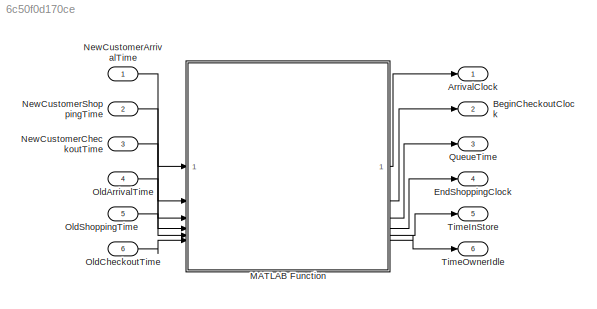
MODEL slx_6c50f0d170ce
KIND model
CONFIG AbsTol = auto
CONFIG EnableMultiTasking = off
CONFIG FixedStep = auto
CONFIG MaxStep = auto
CONFIG MinStep = auto
CONFIG RelTol = 1e-3
CONFIG SampleTimeConstraint = Unconstrained
CONFIG SolverName = VariableStepAuto
CONFIG StartTime = 0.0
CONFIG StopTime = 10.0
BLOCK [Outport] ArrivalClock
BLOCK [Outport] BeginCheckoutClock
  Port = 2
BLOCK [Outport] EndShoppingClock
  Port = 4
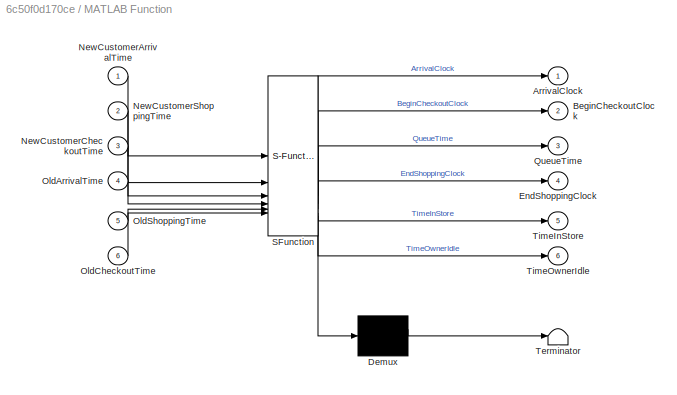
BLOCK [SubSystem] MATLAB Function
  ErrorFcn = Stateflow.Translate.translate
  PermitHierarchicalResolution = ExplicitOnly
  SFBlockType = MATLAB Function
  TreatAsAtomicUnit = on
BLOCK [Demux] MATLAB Function/ Demux 
  Outputs = 1
BLOCK [S-Function] MATLAB Function/ SFunction 
  EnableBusSupport = on
  FunctionName = sf_sfun
  PortCounts = [6 7]
  SFcnIsStateOwnerBlock = off
  SFunctionDeploymentMode = off
  Tag = Stateflow S-Function 2
BLOCK [Terminator] MATLAB Function/ Terminator 
BLOCK [Outport] MATLAB Function/ArrivalClock
BLOCK [Outport] MATLAB Function/BeginCheckoutClock
  Port = 2
BLOCK [Outport] MATLAB Function/EndShoppingClock
  Port = 4
BLOCK [Inport] MATLAB Function/NewCustomerArrivalTime
BLOCK [Inport] MATLAB Function/NewCustomerCheckoutTime
  Port = 3
BLOCK [Inport] MATLAB Function/NewCustomerShoppingTime
  Port = 2
BLOCK [Inport] MATLAB Function/OldArrivalTime
  Port = 4
BLOCK [Inport] MATLAB Function/OldCheckoutTime
  Port = 6
BLOCK [Inport] MATLAB Function/OldShoppingTime
  Port = 5
BLOCK [Outport] MATLAB Function/QueueTime
  Port = 3
BLOCK [Outport] MATLAB Function/TimeInStore
  Port = 5
BLOCK [Outport] MATLAB Function/TimeOwnerIdle
  Port = 6
BLOCK [Inport] NewCustomerArrivalTime
BLOCK [Inport] NewCustomerCheckoutTime
  Port = 3
BLOCK [Inport] NewCustomerShoppingTime
  Port = 2
BLOCK [Inport] OldArrivalTime
  Port = 4
BLOCK [Inport] OldCheckoutTime
  Port = 6
BLOCK [Inport] OldShoppingTime
  Port = 5
BLOCK [Outport] QueueTime
  Port = 3
BLOCK [Outport] TimeInStore
  Port = 5
BLOCK [Outport] TimeOwnerIdle
  Port = 6
LINE MATLAB Function:1 -> ArrivalClock:1
LINE MATLAB Function:2 -> BeginCheckoutClock:1
LINE MATLAB Function:3 -> QueueTime:1
LINE MATLAB Function:4 -> EndShoppingClock:1
LINE MATLAB Function:5 -> TimeInStore:1
LINE MATLAB Function:6 -> TimeOwnerIdle:1
LINE NewCustomerArrivalTime:1 -> MATLAB Function:1
LINE NewCustomerCheckoutTime:1 -> MATLAB Function:3
LINE NewCustomerShoppingTime:1 -> MATLAB Function:2
LINE OldArrivalTime:1 -> MATLAB Function:4
LINE OldCheckoutTime:1 -> MATLAB Function:6
LINE OldShoppingTime:1 -> MATLAB Function:5
CHART MATLAB Function states=1 transitions=1
  STATE_LABEL 'eML_blk_kernel()'
  STATE_LABEL 'SCRIPT:\nfunction [ArrivalClock, BeginCheckoutClock, QueueTime, EndShoppingClock, TimeInStore, TimeOwnerIdle] = CalcTimes( ...\n    NewCustomerArrivalTime, NewCustomerShoppingTime, NewCustomerCheckoutTime, ...\n    OldArrivalTime, OldShoppingTime, OldCheckoutTime)\n\n    % ArrivalClock is simply the time at which the new customer arrives\n    ArrivalClock = OldArrivalTime + NewCustomerArrivalTime;\n    \n...<+1075ch>'
CHART  states=0 transitions=0
